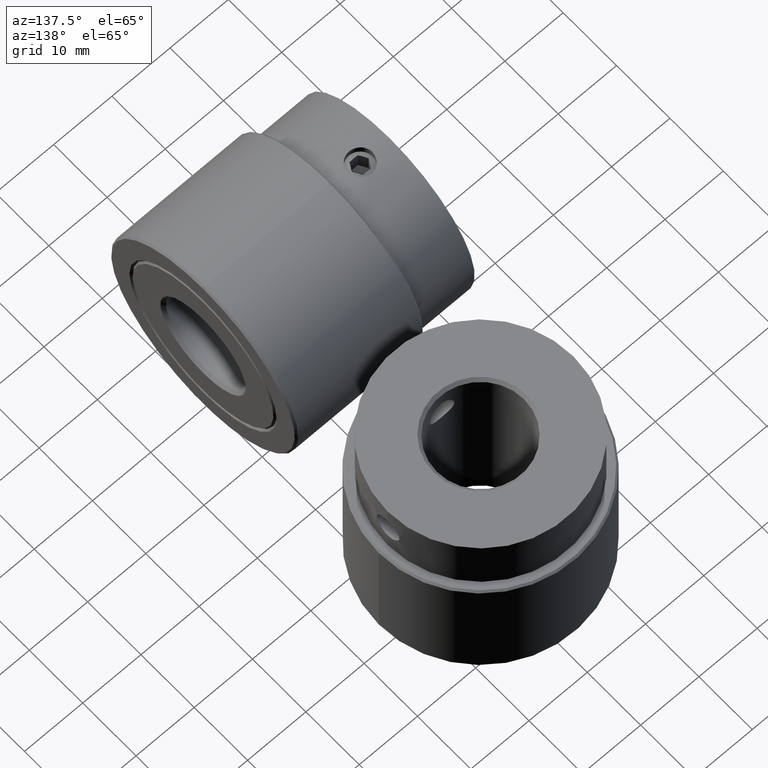
[diagram: clean part render]
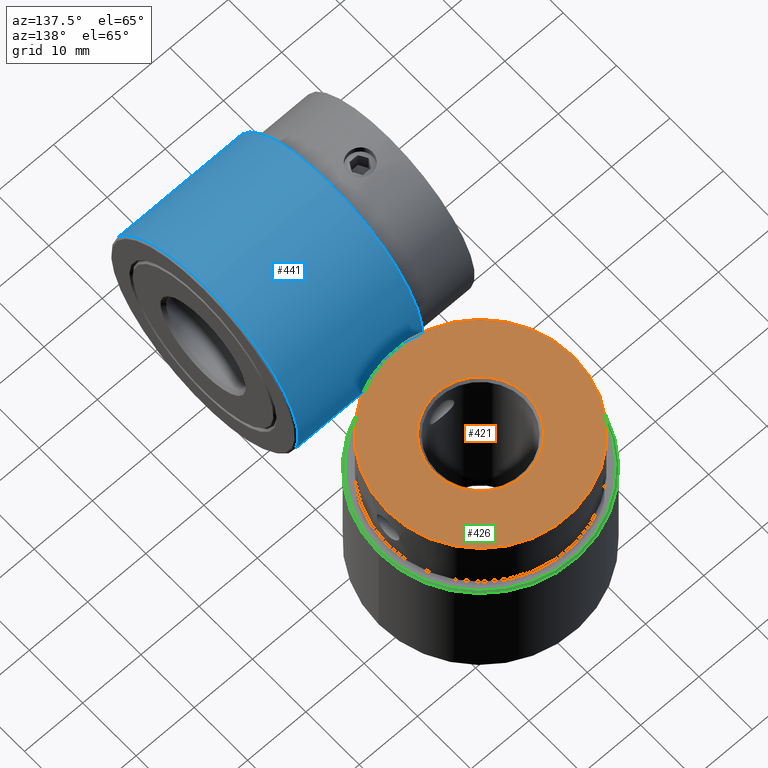
[diagram: same view with three faces highlighted in distinct colors, each labeled with its STEP entity id]
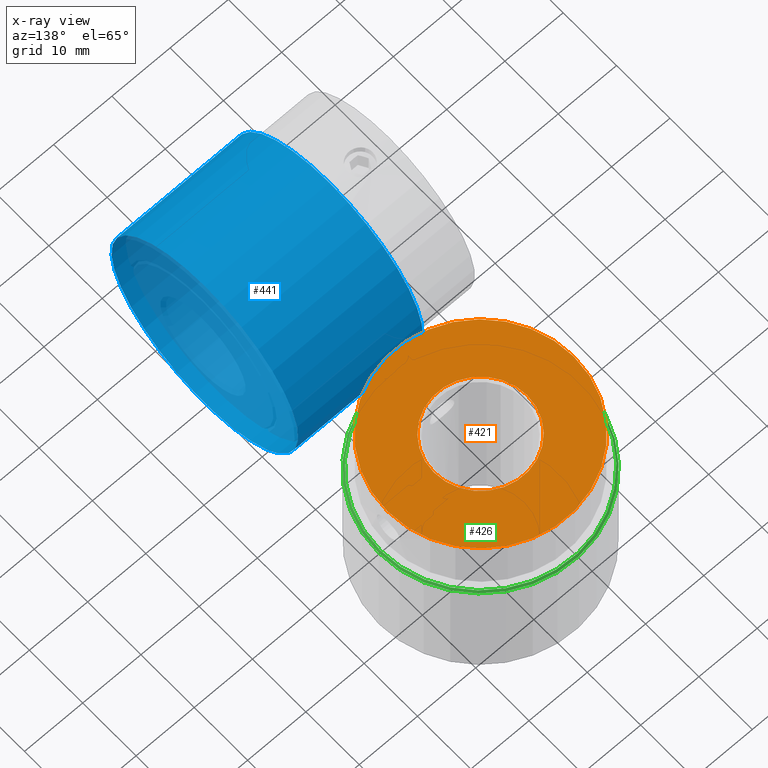
[diagram: x-ray of the same camera — body ghosted, the three highlighted faces saturated]
A machine part, auxiliary view with three faces highlighted in distinct colors.
The next image is the same camera in x-ray (body ghosted, the three faces saturated) — at least one of them is partly hidden behind the body in this view.
Their STEP definitions:

[orange] entity #421 — the highlighted planar face has unit normal (0, 0, 1).
#421 = ADVANCED_FACE( '', ( #523, #524 ), #525, .T. );
#523 = FACE_BOUND( '', #723, .T. );
#524 = FACE_OUTER_BOUND( '', #724, .T. );
#525 = PLANE( '', #725 );
#723 = EDGE_LOOP( '', ( #943 ) );
#724 = EDGE_LOOP( '', ( #944 ) );
#725 = AXIS2_PLACEMENT_3D( '', #945, #946, #947 );
#943 = ORIENTED_EDGE( '', *, *, #1325, .T. );
#944 = ORIENTED_EDGE( '', *, *, #1320, .T. );
#945 = CARTESIAN_POINT( '', ( 0.000000000000000, 0.000000000000000, 32.0000000000000 ) );
#946 = DIRECTION( '', ( 0.000000000000000, 0.000000000000000, 1.00000000000000 ) );
#947 = DIRECTION( '', ( 1.00000000000000, 0.000000000000000, 0.000000000000000 ) );
#1320 = EDGE_CURVE( '', #1433, #1433, #1434, .T. );
#1325 = EDGE_CURVE( '', #1443, #1443, #1444, .F. );
#1433 = VERTEX_POINT( '', #1678 );
#1434 = CIRCLE( '', #1679, 16.0000000000000 );
#1443 = VERTEX_POINT( '', #1855 );
#1444 = CIRCLE( '', #1856, 8.00000000000000 );
#1678 = CARTESIAN_POINT( '', ( 16.0000000000000, 0.000000000000000, 32.0000000000000 ) );
#1679 = AXIS2_PLACEMENT_3D( '', #2385, #2386, #2387 );
#1855 = CARTESIAN_POINT( '', ( 8.00000000000000, 0.000000000000000, 32.0000000000000 ) );
#1856 = AXIS2_PLACEMENT_3D( '', #2391, #2392, #2393 );
#2385 = CARTESIAN_POINT( '', ( 0.000000000000000, 0.000000000000000, 32.0000000000000 ) );
#2386 = DIRECTION( '', ( 0.000000000000000, 0.000000000000000, 1.00000000000000 ) );
#2387 = DIRECTION( '', ( 1.00000000000000, 0.000000000000000, 0.000000000000000 ) );
#2391 = CARTESIAN_POINT( '', ( 0.000000000000000, 0.000000000000000, 32.0000000000000 ) );
#2392 = DIRECTION( '', ( 0.000000000000000, 0.000000000000000, 1.00000000000000 ) );
#2393 = DIRECTION( '', ( 1.00000000000000, 0.000000000000000, -0.000000000000000 ) );

[blue] entity #441 — the highlighted cylindrical surface (bore or boss wall) has radius 17.5 mm, axis along (1, -0, -0).
#441 = ADVANCED_FACE( '', ( #587, #588 ), #589, .T. );
#587 = FACE_OUTER_BOUND( '', #787, .T. );
#588 = FACE_OUTER_BOUND( '', #788, .T. );
#589 = CYLINDRICAL_SURFACE( '', #789, 17.5000000000000 );
#787 = EDGE_LOOP( '', ( #1047 ) );
#788 = EDGE_LOOP( '', ( #1048 ) );
#789 = AXIS2_PLACEMENT_3D( '', #1049, #1050, #1051 );
#1047 = ORIENTED_EDGE( '', *, *, #1349, .T. );
#1048 = ORIENTED_EDGE( '', *, *, #1350, .T. );
#1049 = CARTESIAN_POINT( '', ( 11.0000000000000, -40.0000000000000, 11.0000000000000 ) );
#1050 = DIRECTION( '', ( 1.00000000000000, -0.000000000000000, -6.12323399573677E-017 ) );
#1051 = DIRECTION( '', ( 6.12323399573677E-017, 0.000000000000000, 1.00000000000000 ) );
#1349 = EDGE_CURVE( '', #1491, #1491, #1492, .F. );
#1350 = EDGE_CURVE( '', #1493, #1493, #1494, .T. );
#1491 = VERTEX_POINT( '', #2123 );
#1492 = CIRCLE( '', #2124, 17.5000000000000 );
#1493 = VERTEX_POINT( '', #2125 );
#1494 = CIRCLE( '', #2126, 17.5000000000000 );
#2123 = CARTESIAN_POINT( '', ( -10.7000000000000, -40.0000000000000, 28.5000000000000 ) );
#2124 = AXIS2_PLACEMENT_3D( '', #2451, #2452, #2453 );
#2125 = CARTESIAN_POINT( '', ( 10.7000000000000, -40.0000000000000, 28.5000000000000 ) );
#2126 = AXIS2_PLACEMENT_3D( '', #2454, #2455, #2456 );
#2451 = CARTESIAN_POINT( '', ( -10.7000000000000, -40.0000000000000, 11.0000000000000 ) );
#2452 = DIRECTION( '', ( -1.00000000000000, 0.000000000000000, 6.12323399573677E-017 ) );
#2453 = DIRECTION( '', ( 6.12323399573677E-017, 0.000000000000000, 1.00000000000000 ) );
#2454 = CARTESIAN_POINT( '', ( 10.7000000000000, -40.0000000000000, 11.0000000000000 ) );
#2455 = DIRECTION( '', ( -1.00000000000000, 0.000000000000000, 6.12323399573677E-017 ) );
#2456 = DIRECTION( '', ( 6.12323399573677E-017, 0.000000000000000, 1.00000000000000 ) );

[green] entity #426 — the highlighted conical surface has half-angle 45 deg.
#426 = ADVANCED_FACE( '', ( #538, #539 ), #540, .T. );
#538 = FACE_OUTER_BOUND( '', #738, .T. );
#539 = FACE_BOUND( '', #739, .T. );
#540 = CONICAL_SURFACE( '', #740, 17.2000000000000, 0.785398163397448 );
#738 = EDGE_LOOP( '', ( #968 ) );
#739 = EDGE_LOOP( '', ( #969 ) );
#740 = AXIS2_PLACEMENT_3D( '', #970, #971, #972 );
#968 = ORIENTED_EDGE( '', *, *, #1328, .F. );
#969 = ORIENTED_EDGE( '', *, *, #1334, .F. );
#970 = CARTESIAN_POINT( '', ( 0.000000000000000, 0.000000000000000, 22.0000000000000 ) );
#971 = DIRECTION( '', ( -0.000000000000000, 0.000000000000000, -1.00000000000000 ) );
#972 = DIRECTION( '', ( -1.00000000000000, 0.000000000000000, 0.000000000000000 ) );
#1328 = EDGE_CURVE( '', #1449, #1449, #1450, .F. );
#1334 = EDGE_CURVE( '', #1461, #1461, #1462, .T. );
#1449 = VERTEX_POINT( '', #1861 );
#1450 = CIRCLE( '', #1862, 17.5000000000000 );
#1461 = VERTEX_POINT( '', #1873 );
#1462 = CIRCLE( '', #1874, 17.2000000000000 );
#1861 = CARTESIAN_POINT( '', ( 17.5000000000000, 0.000000000000000, 21.7000000000000 ) );
#1862 = AXIS2_PLACEMENT_3D( '', #2400, #2401, #2402 );
#1873 = CARTESIAN_POINT( '', ( 17.2000000000000, 0.000000000000000, 22.0000000000000 ) );
#1874 = AXIS2_PLACEMENT_3D( '', #2418, #2419, #2420 );
#2400 = CARTESIAN_POINT( '', ( 0.000000000000000, 0.000000000000000, 21.7000000000000 ) );
#2401 = DIRECTION( '', ( 0.000000000000000, -0.000000000000000, 1.00000000000000 ) );
#2402 = DIRECTION( '', ( 1.00000000000000, 0.000000000000000, 0.000000000000000 ) );
#2418 = CARTESIAN_POINT( '', ( 0.000000000000000, 0.000000000000000, 22.0000000000000 ) );
#2419 = DIRECTION( '', ( 0.000000000000000, 0.000000000000000, 1.00000000000000 ) );
#2420 = DIRECTION( '', ( 1.00000000000000, 0.000000000000000, -0.000000000000000 ) );